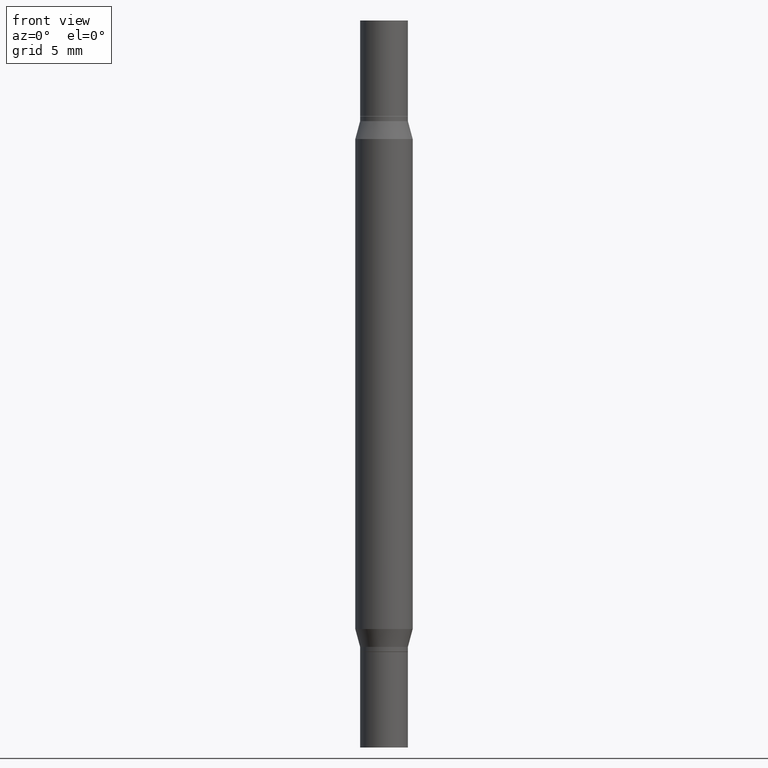
[diagram: clean part render]
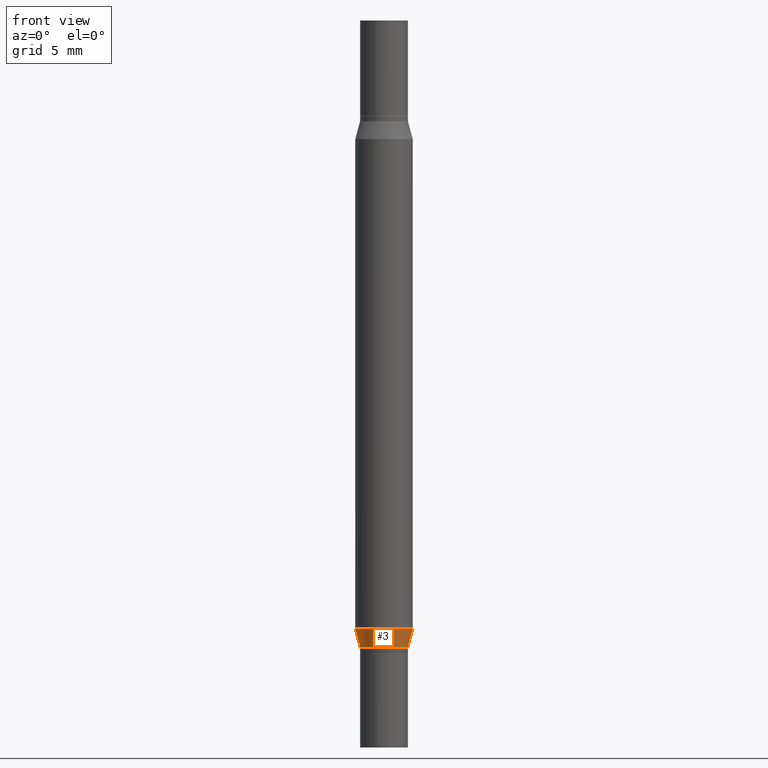
[diagram: same view with one face highlighted and labeled with its STEP entity id]
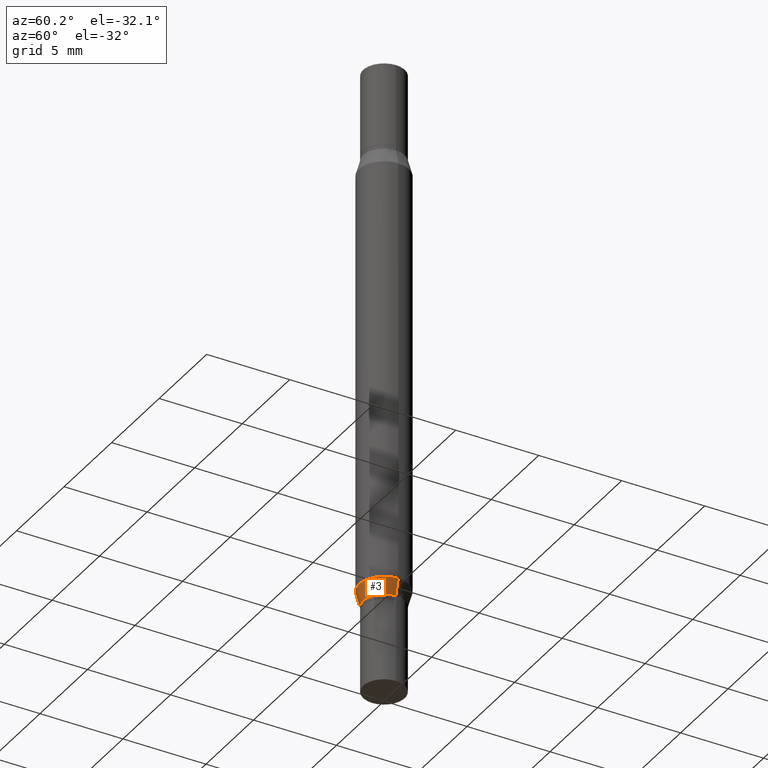
[diagram: same view with one face highlighted and labeled with its STEP entity id]
A machine part, front view. The second image highlights one B-rep face of the part: STEP entity #3.
A second angle (auxiliary view) of the same face is appended — the face is thin or edge-on in the first view.
In plain terms, the highlighted conical surface has half-angle 15 deg.
Its self-contained STEP definition (entity closure, byte-faithful):
#3 = ADVANCED_FACE ( 'NONE', ( #450 ), #495, .T. ) ;
#85 = AXIS2_PLACEMENT_3D ( 'NONE', #565, #181, #723 ) ;
#120 = CARTESIAN_POINT ( 'NONE',  ( 3.152453838053259548E-29, -4.500868593902698784E-15, -1.289099999999999913 ) ) ;
#134 = CARTESIAN_POINT ( 'NONE',  ( -0.04919999999999993823, -4.168040678335177351E-15, -1.289099999999999913 ) ) ;
#166 = EDGE_CURVE ( 'NONE', #942, #839, #298, .T. ) ;
#181 = DIRECTION ( 'NONE',  ( -2.445468806185136597E-29, 3.491481338843145583E-15, 1.000000000000000000 ) ) ;
#226 = DIRECTION ( 'NONE',  ( 0.2588190451025213501, 1.565188264969621968E-15, 0.9659258262890682012 ) ) ;
#231 = EDGE_CURVE ( 'NONE', #964, #842, #245, .T. ) ;
#245 = LINE ( 'NONE', #551, #755 ) ;
#298 = LINE ( 'NONE', #906, #480 ) ;
#324 = DIRECTION ( 'NONE',  ( -2.445468806185136597E-29, 3.491481338843145583E-15, 1.000000000000000000 ) ) ;
#328 = ORIENTED_EDGE ( 'NONE', *, *, #844, .F. ) ;
#342 = CARTESIAN_POINT ( 'NONE',  ( 0.04919999999999993823, -4.844430357644862519E-15, -1.289099999999999913 ) ) ;
#345 = EDGE_CURVE ( 'NONE', #964, #942, #527, .T. ) ;
#372 = ORIENTED_EDGE ( 'NONE', *, *, #231, .F. ) ;
#431 = AXIS2_PLACEMENT_3D ( 'NONE', #802, #324, #791 ) ;
#450 = FACE_OUTER_BOUND ( 'NONE', #519, .T. ) ;
#480 = VECTOR ( 'NONE', #226, 39.37007874015747433 ) ;
#485 = ORIENTED_EDGE ( 'NONE', *, *, #166, .T. ) ;
#495 = CONICAL_SURFACE ( 'NONE', #85, 0.04919999999999993823, 0.2617993877991500740 ) ;
#519 = EDGE_LOOP ( 'NONE', ( #372, #954, #485, #328 ) ) ;
#527 = CIRCLE ( 'NONE', #652, 0.04919999999999993823 ) ;
#551 = CARTESIAN_POINT ( 'NONE',  ( -0.04919999999999993823, -4.151281567908730128E-15, -1.289099999999999913 ) ) ;
#565 = CARTESIAN_POINT ( 'NONE',  ( 3.152453838053259548E-29, -4.500868593902698784E-15, -1.289099999999999913 ) ) ;
#633 = DIRECTION ( 'NONE',  ( 1.000000000000000000, -6.982962677686270655E-15, 0.000000000000000000 ) ) ;
#652 = AXIS2_PLACEMENT_3D ( 'NONE', #120, #788, #633 ) ;
#709 = CARTESIAN_POINT ( 'NONE',  ( -0.05904999999999999832, -2.206690208753205666E-15, -1.252339299545446316 ) ) ;
#723 = DIRECTION ( 'NONE',  ( 1.000000000000000000, -6.982962677686270655E-15, 0.000000000000000000 ) ) ;
#739 = CIRCLE ( 'NONE', #431, 0.05904999999999999832 ) ;
#755 = VECTOR ( 'NONE', #782, 39.37007874015747433 ) ;
#782 = DIRECTION ( 'NONE',  ( -0.2588190451025213501, 5.211531920934551042E-15, 0.9659258262890682012 ) ) ;
#788 = DIRECTION ( 'NONE',  ( -2.445468806185136597E-29, 3.491481338843145583E-15, 1.000000000000000000 ) ) ;
#791 = DIRECTION ( 'NONE',  ( 1.000000000000000000, -6.982962677686273021E-15, 0.000000000000000000 ) ) ;
#802 = CARTESIAN_POINT ( 'NONE',  ( 3.062556691798133272E-29, -4.372519294262821742E-15, -1.252339299545446316 ) ) ;
#839 = VERTEX_POINT ( 'NONE', #875 ) ;
#842 = VERTEX_POINT ( 'NONE', #709 ) ;
#844 = EDGE_CURVE ( 'NONE', #842, #839, #739, .T. ) ;
#875 = CARTESIAN_POINT ( 'NONE',  ( 0.05904999999999999832, -4.784863240380196662E-15, -1.252339299545446316 ) ) ;
#906 = CARTESIAN_POINT ( 'NONE',  ( 0.04919999999999993823, -4.844430357644862519E-15, -1.289099999999999913 ) ) ;
#942 = VERTEX_POINT ( 'NONE', #342 ) ;
#954 = ORIENTED_EDGE ( 'NONE', *, *, #345, .T. ) ;
#964 = VERTEX_POINT ( 'NONE', #134 ) ;